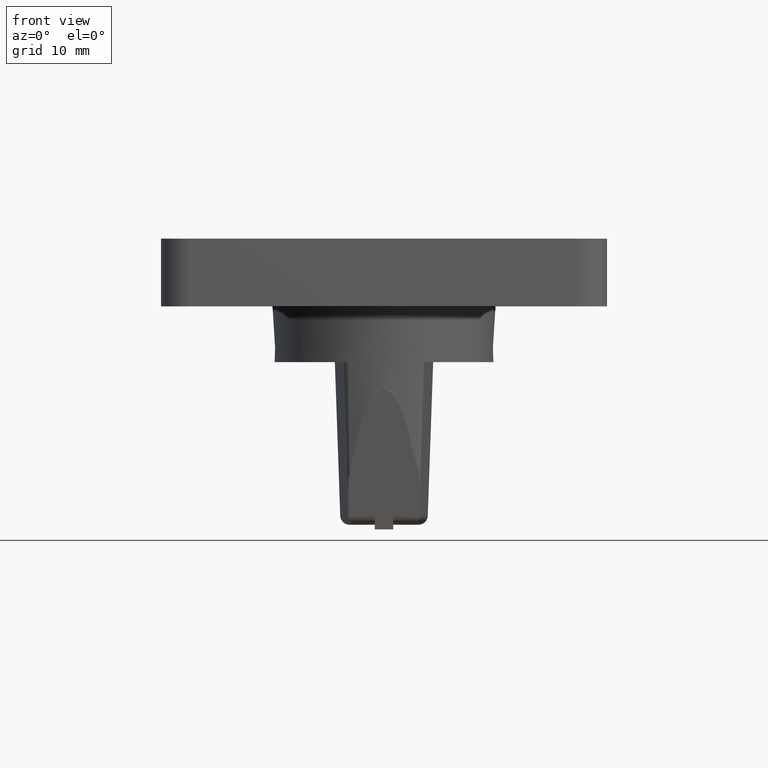
[diagram: clean part render]
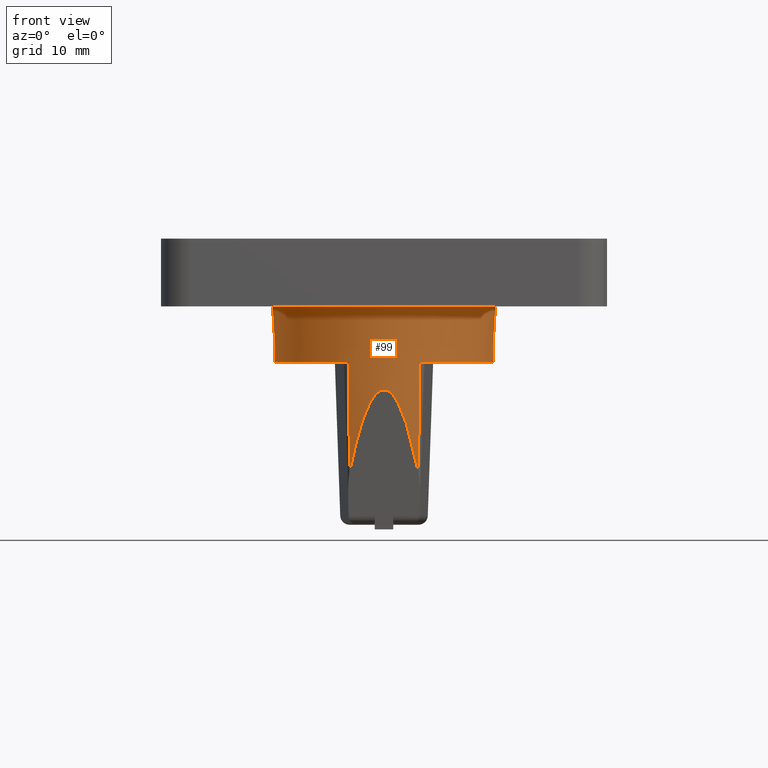
[diagram: same view with one face highlighted and labeled with its STEP entity id]
A machine part, front view. The second image highlights one B-rep face of the part: STEP entity #99.
In plain terms, the highlighted conical surface has half-angle 2 deg.
Its self-contained STEP definition (entity closure, byte-faithful):
#46=CONICAL_SURFACE('',#1178,12.,2.);
#85=B_SPLINE_CURVE_WITH_KNOTS('',3,(#1657,#1658,#1659,#1660),
 .UNSPECIFIED.,.F.,.F.,(4,4),(0.,1.),.UNSPECIFIED.);
#87=B_SPLINE_CURVE_WITH_KNOTS('',3,(#1676,#1677,#1678,#1679),
 .UNSPECIFIED.,.F.,.F.,(4,4),(0.,1.),.UNSPECIFIED.);
#99=ADVANCED_FACE('',(#185),#46,.T.);
#185=FACE_OUTER_BOUND('',#247,.T.);
#247=EDGE_LOOP('',(#396,#397,#398,#399,#400,#401,#402,#403));
#312=CIRCLE('',#1171,11.7904753830495);
#315=CIRCLE('',#1175,12.);
#316=CIRCLE('',#1177,11.7904753830495);
#355=ELLIPSE('',#1176,83.9178293352652,8.27349090748422);
#396=ORIENTED_EDGE('',*,*,#814,.F.);
#397=ORIENTED_EDGE('',*,*,#830,.F.);
#398=ORIENTED_EDGE('',*,*,#820,.F.);
#399=ORIENTED_EDGE('',*,*,#826,.T.);
#400=ORIENTED_EDGE('',*,*,#831,.F.);
#401=ORIENTED_EDGE('',*,*,#832,.F.);
#402=ORIENTED_EDGE('',*,*,#833,.T.);
#403=ORIENTED_EDGE('',*,*,#834,.T.);
#709=VERTEX_POINT('',#1656);
#710=VERTEX_POINT('',#1661);
#715=VERTEX_POINT('',#1675);
#716=VERTEX_POINT('',#1680);
#721=VERTEX_POINT('',#1692);
#724=VERTEX_POINT('',#1701);
#725=VERTEX_POINT('',#1703);
#726=VERTEX_POINT('',#1705);
#814=EDGE_CURVE('',#709,#710,#85,.T.);
#820=EDGE_CURVE('',#715,#716,#87,.T.);
#826=EDGE_CURVE('',#715,#721,#312,.T.);
#830=EDGE_CURVE('',#716,#709,#315,.T.);
#831=EDGE_CURVE('',#724,#721,#984,.T.);
#832=EDGE_CURVE('',#725,#724,#355,.T.);
#833=EDGE_CURVE('',#725,#726,#985,.T.);
#834=EDGE_CURVE('',#726,#710,#316,.T.);
#984=LINE('',#1700,#1082);
#985=LINE('',#1704,#1083);
#1082=VECTOR('',#1328,1.);
#1083=VECTOR('',#1331,1.);
#1171=AXIS2_PLACEMENT_3D('',#1691,#1317,#1318);
#1175=AXIS2_PLACEMENT_3D('',#1699,#1326,#1327);
#1176=AXIS2_PLACEMENT_3D('',#1702,#1329,#1330);
#1177=AXIS2_PLACEMENT_3D('',#1706,#1332,#1333);
#1178=AXIS2_PLACEMENT_3D('',#1707,#1334,#1335);
#1317=DIRECTION('',(0.,0.,1.));
#1318=DIRECTION('',(-1.,0.,0.));
#1326=DIRECTION('',(0.,0.,1.));
#1327=DIRECTION('',(1.,0.,0.));
#1328=DIRECTION('',(-0.011378477901239,-0.0329925008257769,0.999390827019096));
#1329=DIRECTION('',(0.,-0.994521895368274,-0.104528463267651));
#1330=DIRECTION('',(0.,-0.104528463267651,0.994521895368274));
#1331=DIRECTION('',(0.0113784779013184,-0.0329925008257495,0.999390827019096));
#1332=DIRECTION('',(0.,0.,1.));
#1333=DIRECTION('',(-1.,0.,0.));
#1334=DIRECTION('',(0.,0.,1.));
#1335=DIRECTION('',(1.,0.,0.));
#1656=CARTESIAN_POINT('',(-155.748823738146,-230.209951442791,0.));
#1657=CARTESIAN_POINT('',(-155.748823738146,-230.209951442791,0.));
#1658=CARTESIAN_POINT('',(-155.81768884433,-230.254110462294,-2.00000550708386));
#1659=CARTESIAN_POINT('',(-155.886548022503,-230.298524363956,-4.00000560810213));
#1660=CARTESIAN_POINT('',(-155.955401049627,-230.343202582943,-6.));
#1661=CARTESIAN_POINT('',(-155.955401049627,-230.343202582943,-6.));
#1675=CARTESIAN_POINT('',(-166.044598950373,-230.343202582943,-6.));
#1676=CARTESIAN_POINT('',(-166.044598950373,-230.343202582943,-6.));
#1677=CARTESIAN_POINT('',(-166.113451977497,-230.298524363956,-4.00000560810213));
#1678=CARTESIAN_POINT('',(-166.18231115567,-230.254110462294,-2.00000550708386));
#1679=CARTESIAN_POINT('',(-166.251176261855,-230.209951442791,0.));
#1680=CARTESIAN_POINT('',(-166.251176261855,-230.209951442791,0.));
#1691=CARTESIAN_POINT('',(-161.,-241.,-6.));
#1692=CARTESIAN_POINT('',(-164.844114565168,-252.146214288634,-6.));
#1699=CARTESIAN_POINT('',(-161.,-241.,0.));
#1700=CARTESIAN_POINT('',(-164.912427046694,-252.344289955934,4.23528674118528E-016));
#1701=CARTESIAN_POINT('',(-164.70927638435,-251.755243823988,-17.8430639152207));
#1702=CARTESIAN_POINT('',(-161.,-243.914421724838,-92.443502987259));
#1703=CARTESIAN_POINT('',(-157.290723615626,-251.755243823975,-17.843063915344));
#1704=CARTESIAN_POINT('',(-157.087572953279,-252.344289955924,2.42016385210588E-016));
#1705=CARTESIAN_POINT('',(-157.155885434805,-252.146214288625,-6.));
#1706=CARTESIAN_POINT('',(-161.,-241.,-6.));
#1707=CARTESIAN_POINT('',(-161.,-241.,0.));